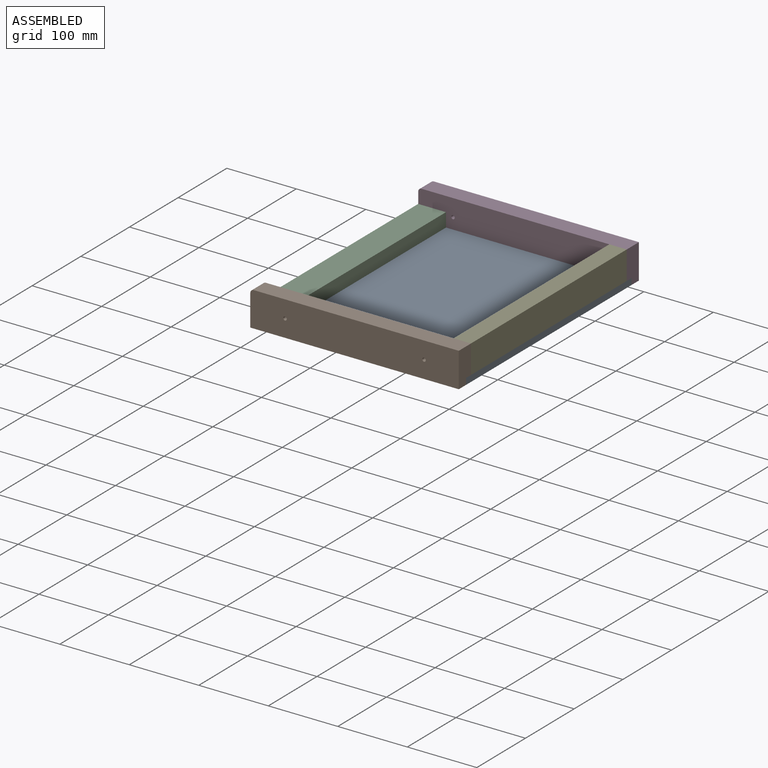
[diagram: assembled view]
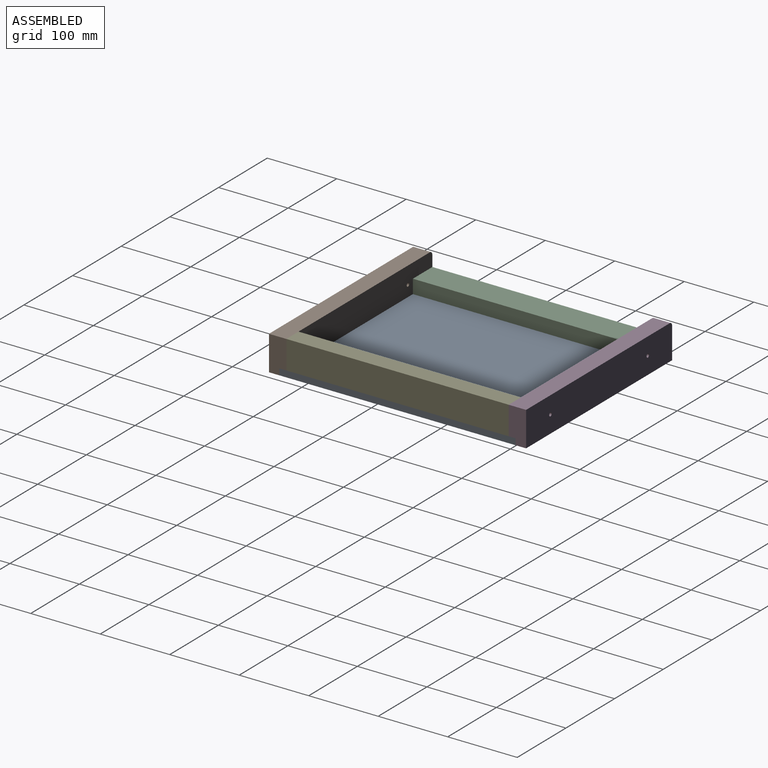
[diagram: assembled view, second angle]
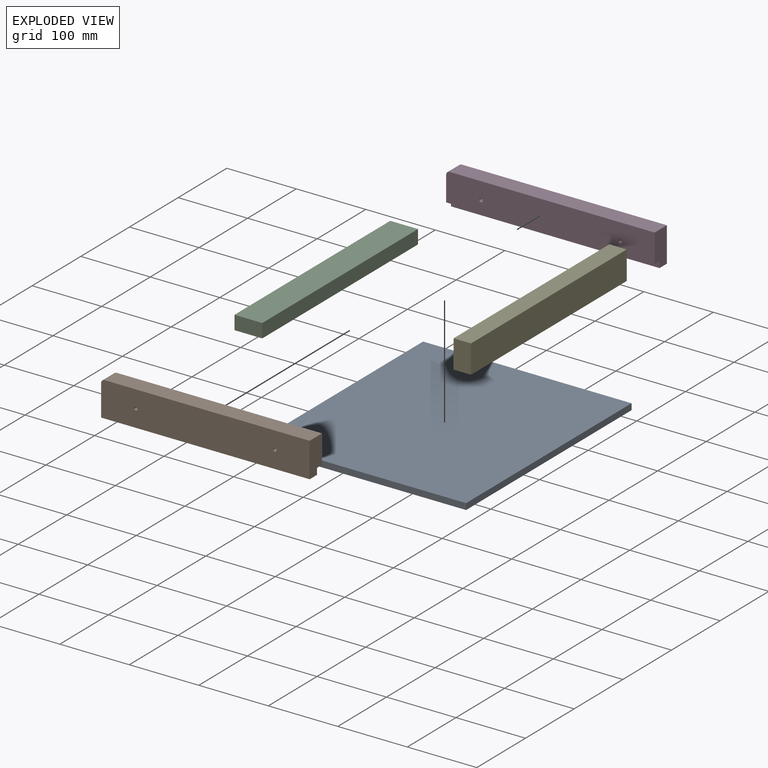
[diagram: exploded view]
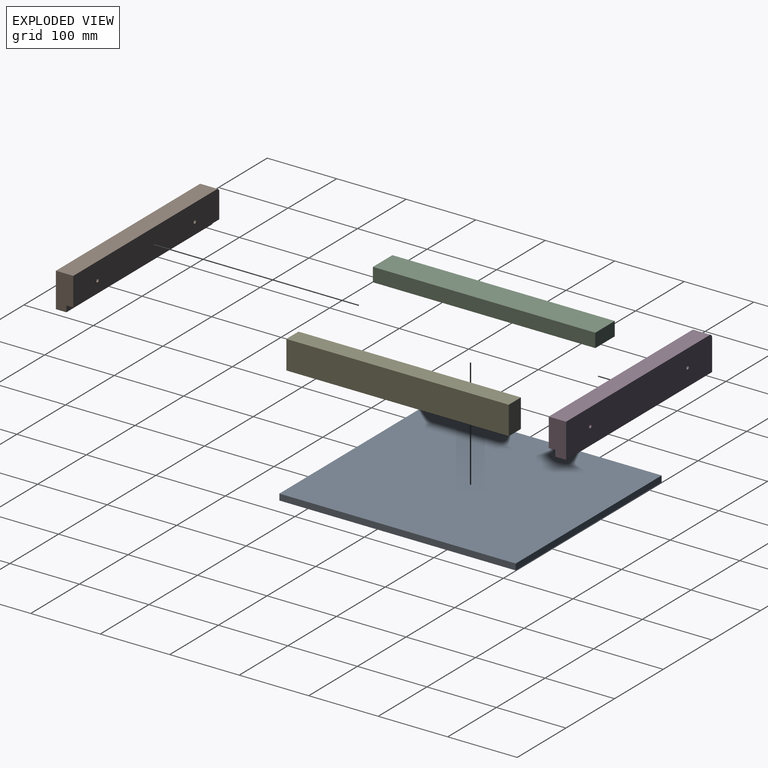
[diagram: exploded view, second angle]
ASSEMBLY  parts=5 mates=4
PART A: 6 faces, bbox 300x340x9 mm
  f0: plane 300x9mm, normal (0,-1,0), area 2700mm2, adj f1,f3,f4,f5
  f1: plane 340x9mm, normal (-1,0,0), area 3060mm2, adj f0,f2,f3,f4
  f2: plane 300x9mm, normal (0,1,0), area 2700mm2, adj f1,f3,f4,f5
  f3: plane 340x300mm, normal (0,0,-1), area 102000mm2, adj f0,f1,f2,f5
  f4: plane 340x300mm, normal (0,0,1), area 102000mm2, adj f0,f1,f2,f5
  f5: plane 340x9mm, normal (1,0,0), area 3060mm2, adj f0,f2,f3,f4
PART B: 11 faces, bbox 300x25x50 mm
  f0: plane 45x25mm, normal (-1,0,0), area 1035mm2, adj f1,f3,f7,f8,f9,f10
  f1: plane 300x15mm, normal (0,0,-1), area 4500mm2, adj f0,f2,f8,f10
  f2: plane 50x25mm, normal (1,0,0), area 1160mm2, adj f1,f3,f4,f8,f9,f10
  f3: plane 300x41mm, normal (0,1,0), area 12255.4mm2, adj f0,f2,f4,f5,f6,f7,f9
  f4: plane 295x25mm, normal (0,0,1), area 7375mm2, adj f2,f3,f7,f8
  f5: cylinder r=2.5mm len=25mm, axis (0,-1,0), area 392.7mm2, adj f3,f8
  f6: cylinder r=2.5mm len=25mm, axis (0,-1,0), area 392.7mm2, adj f3,f8
  f7: cylinder r=5mm len=25mm, axis (0,-1,0), area 196.3mm2, adj f0,f3,f4,f8
  f8: plane 300x50mm, normal (0,-1,0), area 14955.4mm2, adj f0,f1,f2,f4,f5,f6,f7
  f9: plane 300x10mm, normal (0,0,-1), area 3000mm2, adj f0,f2,f3,f10
  f10: plane 300x9mm, normal (0,1,0), area 2700mm2, adj f0,f1,f2,f9
PART C: 6 faces, bbox 40x320x20 mm
  f0: plane 40x20mm, normal (0,-1,0), area 800mm2, adj f1,f2,f3,f4
  f1: plane 320x20mm, normal (-1,0,0), area 6400mm2, adj f0,f2,f4,f5
  f2: plane 320x40mm, normal (0,0,-1), area 12800mm2, adj f0,f1,f3,f5
  f3: plane 320x20mm, normal (1,0,0), area 6400mm2, adj f0,f2,f4,f5
  f4: plane 320x40mm, normal (0,0,1), area 12800mm2, adj f0,f1,f3,f5
  f5: plane 40x20mm, normal (0,1,0), area 800mm2, adj f1,f2,f3,f4
PART D: 11 faces, bbox 300x25x50 mm
  f0: plane 45x25mm, normal (-1,0,0), area 1035mm2, adj f1,f3,f7,f8,f9,f10
  f1: plane 300x15mm, normal (0,0,-1), area 4500mm2, adj f0,f2,f8,f10
  f2: plane 50x25mm, normal (1,0,0), area 1160mm2, adj f1,f3,f4,f8,f9,f10
  f3: plane 300x41mm, normal (0,-1,0), area 12255.4mm2, adj f0,f2,f4,f5,f6,f7,f9
  f4: plane 295x25mm, normal (0,0,1), area 7375mm2, adj f2,f3,f7,f8
  f5: cylinder r=2.5mm len=25mm, axis (0,1,0), area 392.7mm2, adj f3,f8
  f6: cylinder r=2.5mm len=25mm, axis (0,1,0), area 392.7mm2, adj f3,f8
  f7: cylinder r=5mm len=25mm, axis (0,1,0), area 196.3mm2, adj f0,f3,f4,f8
  f8: plane 300x50mm, normal (0,1,0), area 14955.4mm2, adj f0,f1,f2,f4,f5,f6,f7
  f9: plane 300x10mm, normal (0,0,-1), area 3000mm2, adj f0,f2,f3,f10
  f10: plane 300x9mm, normal (0,-1,0), area 2700mm2, adj f0,f1,f2,f9
PART E: 6 faces, bbox 25x320x41 mm
  f0: plane 41x25mm, normal (0,-1,0), area 1025mm2, adj f1,f2,f3,f4
  f1: plane 320x41mm, normal (-1,0,0), area 13120mm2, adj f0,f2,f4,f5
  f2: plane 320x25mm, normal (0,0,-1), area 8000mm2, adj f0,f1,f3,f5
  f3: plane 320x41mm, normal (1,0,0), area 13120mm2, adj f0,f2,f4,f5
  f4: plane 320x25mm, normal (0,0,1), area 8000mm2, adj f0,f1,f3,f5
  f5: plane 41x25mm, normal (0,1,0), area 1025mm2, adj f1,f2,f3,f4
PLACE A t=(-163.36,23.38,146.93)mm
PLACE B t=(-163.36,23.38,146.93)mm
PLACE C t=(-163.36,23.38,146.93)mm
PLACE D t=(-163.36,23.38,146.93)mm
PLACE E t=(-163.36,23.38,146.93)mm
MATE fastened B.f3 <-> C.f0  axis (0,1,0) through (-313.36,-321.62,-279.07)mm
MATE fastened C.f5 <-> D.f3  axis (0,1,0) through (-313.36,-1.62,-279.07)mm
MATE fastened E.f5 <-> D.f3  axis (0,1,0) through (-13.36,-1.62,-238.07)mm
MATE fastened A.f4 <-> D.f9  axis (0,0,1) through (-313.36,8.38,-279.07)mm
